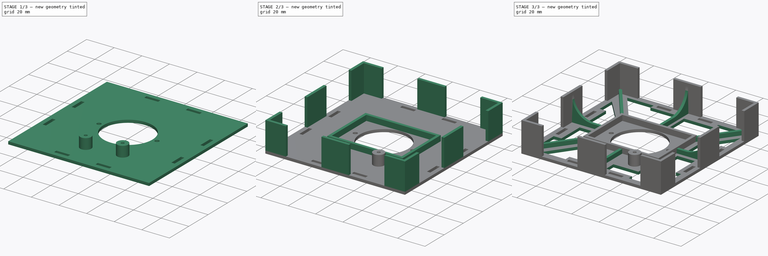
[diagram: build sequence overview — one tinted view per stage of 3, left to right]
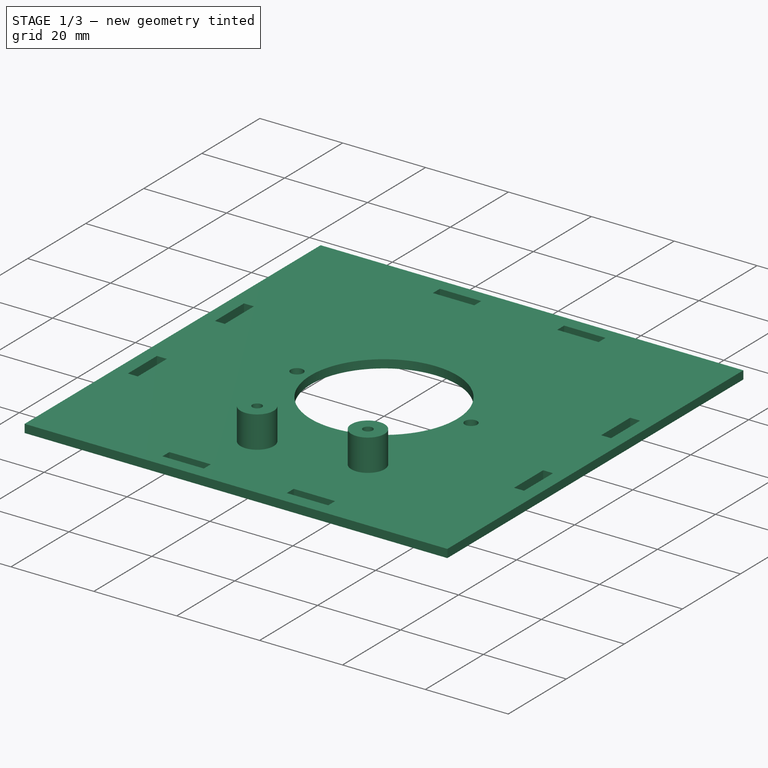
[diagram: stage 1 of 3 — iso view after this stage's code; geometry added in this stage tinted green]
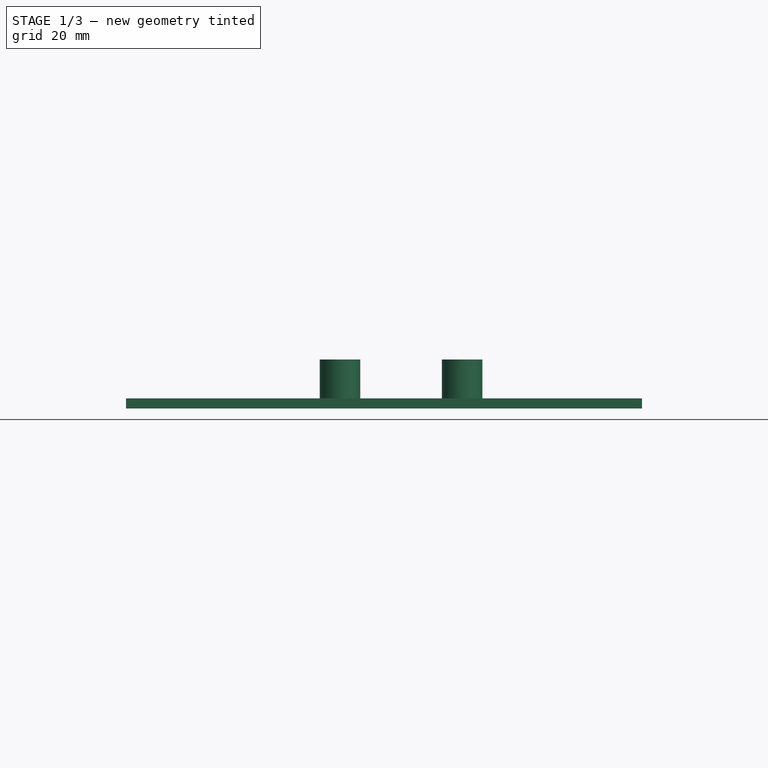
[diagram: stage 1 of 3 — front view after this stage's code; geometry added in this stage tinted green]
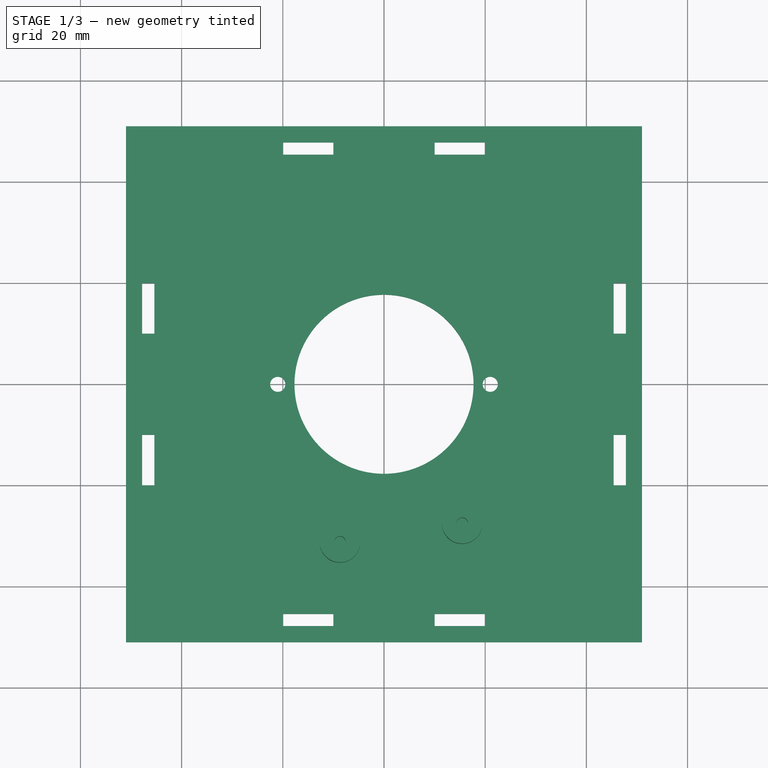
[diagram: stage 1 of 3 — top view after this stage's code; geometry added in this stage tinted green]
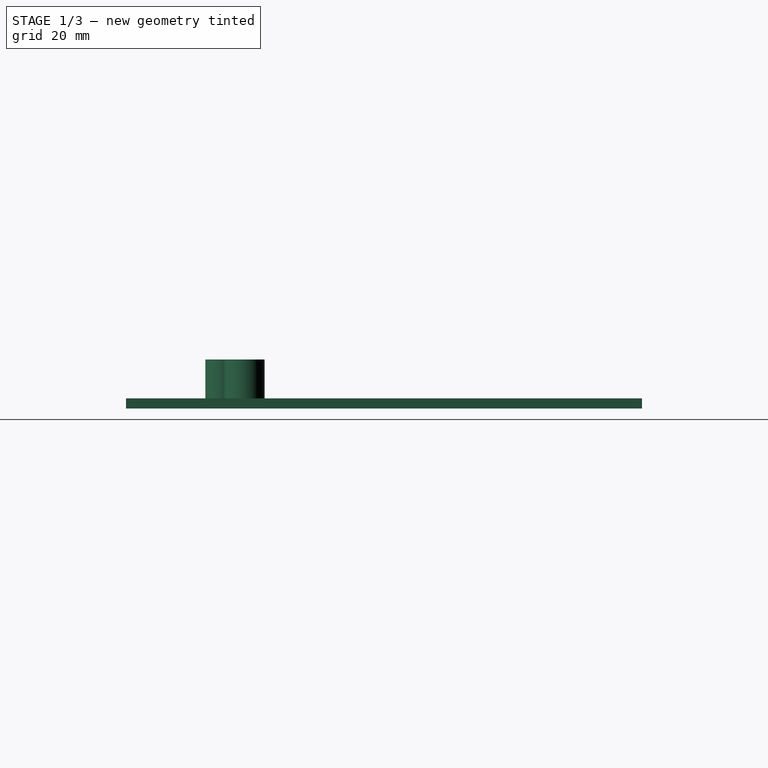
[diagram: stage 1 of 3 — right view after this stage's code; geometry added in this stage tinted green]
FCSTD DOCUMENT  (FreeCAD 0.15R4671 (Git))
Label: Rubiks Frame Bottom Top Small Steppers
License: All rights reserved
LicenseURL: http://en.wikipedia.org/wiki/All_rights_reserved
objects: Sketcher::SketchObject×7, PartDesign::Pad×5, PartDesign::Pocket×2, PartDesign::Fillet×1
note: 22 computed .brp shape members not serialized (recipe doc carries the construction recipe); baked Part::Feature solids carry a one-line shape summary decoded from their .brp

FEATURE [Sketcher::SketchObject] Sketch
  sketch-geometry (4):
    g0: LineSegment StartX=-51 StartY=51 StartZ=0 EndX=51 EndY=51 EndZ=0
    g1: LineSegment StartX=51 StartY=51 StartZ=0 EndX=51 EndY=-51 EndZ=0
    g2: LineSegment StartX=51 StartY=-51 StartZ=0 EndX=-51 EndY=-51 EndZ=0
    g3: LineSegment StartX=-51 StartY=-51 StartZ=0 EndX=-51 EndY=51 EndZ=0
  constraints (12):
    c: Coincident(g0,g1)
    c: Coincident(g1,g2)
    c: Coincident(g2,g3)
    c: Coincident(g3,g0)
    c: Horizontal(g0)
    c: Horizontal(g2)
    c: Vertical(g1)
    c: Vertical(g3)
    c: Symmetric(g0,g0,g-2)
    c: Symmetric(g0,g1,g-1)
    c: Equal(g1,g0)
    c: Distance(g0) = 102
FEATURE [PartDesign::Pad] Pad
  Length = 2
  Length2 = 100
  Sketch = -> Sketch
  Type = 0
FEATURE [Sketcher::SketchObject] Sketch001
  Placement = pos=(0,0,2) rot=(0,0,1;0rad)
  Support = -> Pad [Face6]
  sketch-geometry (39):
    g0: Circle CenterX=0 CenterY=0 CenterZ=0 NormalX=0 NormalY=0 NormalZ=1 Radius=17.7
    g1: Circle CenterX=-21 CenterY=0 CenterZ=0 NormalX=0 NormalY=0 NormalZ=1 Radius=1.5
    g2: Circle CenterX=21 CenterY=0 CenterZ=0 NormalX=0 NormalY=0 NormalZ=1 Radius=1.5
    g3: LineSegment StartX=-20 StartY=47.8 StartZ=0 EndX=-10 EndY=47.8 EndZ=0
    g4: LineSegment StartX=-10 StartY=47.8 StartZ=0 EndX=-10 EndY=45.4 EndZ=0
    g5: LineSegment StartX=-10 StartY=45.4 StartZ=0 EndX=-20 EndY=45.4 EndZ=0
    g6: LineSegment StartX=-20 StartY=45.4 StartZ=0 EndX=-20 EndY=47.8 EndZ=0
    g7: LineSegment StartX=10 StartY=47.8 StartZ=0 EndX=20 EndY=47.8 EndZ=0
    g8: LineSegment StartX=20 StartY=47.8 StartZ=0 EndX=20 EndY=45.4 EndZ=0
    g9: LineSegment StartX=20 StartY=45.4 StartZ=0 EndX=10 EndY=45.4 EndZ=0
    g10: LineSegment StartX=10 StartY=45.4 StartZ=0 EndX=10 EndY=47.8 EndZ=0
    g11: LineSegment StartX=45.4 StartY=20 StartZ=0 EndX=47.8 EndY=20 EndZ=0
    g12: LineSegment StartX=47.8 StartY=20 StartZ=0 EndX=47.8 EndY=10 EndZ=0
    g13: LineSegment StartX=47.8 StartY=10 StartZ=0 EndX=45.4 EndY=10 EndZ=0
    g14: LineSegment StartX=45.4 StartY=10 StartZ=0 EndX=45.4 EndY=20 EndZ=0
    g15: LineSegment StartX=45.4 StartY=-10 StartZ=0 EndX=47.8 EndY=-10 EndZ=0
    g16: LineSegment StartX=47.8 StartY=-10 StartZ=0 EndX=47.8 EndY=-20 EndZ=0
    g17: LineSegment StartX=47.8 StartY=-20 StartZ=0 EndX=45.4 EndY=-20 EndZ=0
    g18: LineSegment StartX=45.4 StartY=-20 StartZ=0 EndX=45.4 EndY=-10 EndZ=0
    g19: LineSegment StartX=20 StartY=-47.8 StartZ=0 EndX=10 EndY=-47.8 EndZ=0
    g20: LineSegment StartX=10 StartY=-47.8 StartZ=0 EndX=10 EndY=-45.4 EndZ=0
    g21: LineSegment StartX=10 StartY=-45.4 StartZ=0 EndX=20 EndY=-45.4 EndZ=0
    g22: LineSegment StartX=20 StartY=-45.4 StartZ=0 EndX=20 EndY=-47.8 EndZ=0
    g23: LineSegment StartX=-10 StartY=-47.8 StartZ=0 EndX=-20 EndY=-47.8 EndZ=0
    g24: LineSegment StartX=-20 StartY=-47.8 StartZ=0 EndX=-20 EndY=-45.4 EndZ=0
    g25: LineSegment StartX=-20 StartY=-45.4 StartZ=0 EndX=-10 EndY=-45.4 EndZ=0
    g26: LineSegment StartX=-10 StartY=-45.4 StartZ=0 EndX=-10 EndY=-47.8 EndZ=0
    g27: LineSegment StartX=-47.8 StartY=20 StartZ=0 EndX=-45.4 EndY=20 EndZ=0
    g28: LineSegment StartX=-45.4 StartY=20 StartZ=0 EndX=-45.4 EndY=10 EndZ=0
    g29: LineSegment StartX=-45.4 StartY=10 StartZ=0 EndX=-47.8 EndY=10 EndZ=0
    g30: LineSegment StartX=-47.8 StartY=10 StartZ=0 EndX=-47.8 EndY=20 EndZ=0
    g31: LineSegment StartX=-47.8 StartY=-10 StartZ=0 EndX=-45.4 EndY=-10 EndZ=0
    g32: LineSegment StartX=-45.4 StartY=-10 StartZ=0 EndX=-45.4 EndY=-20 EndZ=0
    g33: LineSegment StartX=-45.4 StartY=-20 StartZ=0 EndX=-47.8 EndY=-20 EndZ=0
    g34: LineSegment StartX=-47.8 StartY=-20 StartZ=0 EndX=-47.8 EndY=-10 EndZ=0
    g35: LineSegment [constr] StartX=-45.4 StartY=10 StartZ=0 EndX=-45.4 EndY=-10 EndZ=0
    g36: LineSegment [constr] StartX=-10 StartY=45.4 StartZ=0 EndX=10 EndY=45.4 EndZ=0
    g37: LineSegment [constr] StartX=-45.4 StartY=-20 StartZ=0 EndX=45.4 EndY=-20 EndZ=0
    g38: LineSegment [constr] StartX=10 StartY=45.4 StartZ=0 EndX=10 EndY=-45.4 EndZ=0
  constraints (117):
    c: Coincident(g0,g-1)
    c: Radius(g0) = 17.7
    c: Symmetric(g2,g1,g-2)
    c: Equal(g2,g1)
    c: Radius(g2) = 1.5
    c: PointOnObject(g2,g-1)
    c: DistanceX(g1,g2) = 42
    c: Coincident(g3,g4)
    c: Coincident(g4,g5)
    c: Coincident(g5,g6)
    c: Coincident(g6,g3)
    c: Horizontal(g3)
    c: Horizontal(g5)
    c: Vertical(g4)
    c: Vertical(g6)
    c: Coincident(g7,g8)
    c: Coincident(g8,g9)
    c: Coincident(g9,g10)
    c: Coincident(g10,g7)
    c: Horizontal(g7)
    c: Horizontal(g9)
    c: Vertical(g8)
    c: Vertical(g10)
    c: Coincident(g11,g12)
    c: Coincident(g12,g13)
    c: Coincident(g13,g14)
    c: Coincident(g14,g11)
    c: Horizontal(g11)
    c: Horizontal(g13)
    c: Vertical(g12)
    c: Vertical(g14)
    c: Coincident(g15,g16)
    c: Coincident(g16,g17)
    c: Coincident(g17,g18)
    c: Coincident(g18,g15)
    c: Horizontal(g15)
    c: Horizontal(g17)
    c: Vertical(g16)
    c: Vertical(g18)
    c: Coincident(g19,g20)
    c: Coincident(g20,g21)
    c: Coincident(g21,g22)
    c: Coincident(g22,g19)
    c: Horizontal(g19)
    c: Horizontal(g21)
    c: Vertical(g20)
    c: Vertical(g22)
    c: Coincident(g23,g24)
    c: Coincident(g24,g25)
    c: Coincident(g25,g26)
    c: Coincident(g26,g23)
    c: Horizontal(g23)
    c: Horizontal(g25)
    c: Vertical(g24)
    c: Vertical(g26)
    c: Coincident(g27,g28)
    c: Coincident(g28,g29)
    c: Coincident(g29,g30)
    c: Coincident(g30,g27)
    c: Horizontal(g27)
    c: Horizontal(g29)
    c: Vertical(g28)
    c: Vertical(g30)
    c: Coincident(g31,g32)
    c: Coincident(g32,g33)
    c: Coincident(g33,g34)
    c: Coincident(g34,g31)
    c: Horizontal(g31)
    c: Horizontal(g33)
    c: Vertical(g32)
    c: Vertical(g34)
    c: Equal(g30,g28)
    c: Equal(g28,g3)
    c: Equal(g3,g5)
    c: Equal(g5,g7)
    c: Equal(g7,g9)
    c: Equal(g9,g14)
    c: Equal(g14,g12)
    c: Equal(g12,g18)
    c: Equal(g18,g16)
    c: Equal(g16,g21)
    c: Equal(g21,g19)
    c: Equal(g19,g25)
    c: Equal(g25,g23)
    c: Equal(g23,g34)
    c: Equal(g34,g32)
    c: Equal(g27,g6)
    c: Equal(g6,g8)
    c: Equal(g8,g11)
    c: Equal(g11,g15)
    c: Equal(g15,g22)
    c: Equal(g22,g26)
    c: Equal(g26,g33)
    c: Symmetric(g31,g29,g-1)
    c: Symmetric(g15,g13,g-1)
    c: Symmetric(g7,g3,g-2)
    c: Symmetric(g25,g20,g-2)
    c: Symmetric(g4,g25,g-1)
    c: Symmetric(g28,g13,g-2)
    c: Coincident(g35,g28)
    c: Coincident(g35,g31)
    c: Vertical(g35)
    c: Coincident(g36,g4)
    c: Coincident(g36,g9)
    c: Horizontal(g36)
    c: Equal(g35,g36)
    c: Distance(g27) = 2.4
    c: Distance(g35) = 20
    c: DistanceX(g-1,g33) = -47.8
    c: Distance(g30) = 10
    c: Coincident(g37,g32)
    c: Coincident(g37,g17)
    c: Horizontal(g37)
    c: Coincident(g38,g20)
    c: Vertical(g38)
    c: Equal(g38,g37)
    c: Coincident(g38,g9)
FEATURE [PartDesign::Pocket] Pocket
  Length = 5
  Sketch = -> Sketch001
  Type = 1
FEATURE [Sketcher::SketchObject] Sketch002
  Placement = pos=(0,0,2) rot=(0,0,1;0rad)
  Support = -> Pocket [Face5]
  sketch-geometry (8):
    g0: LineSegment [constr] StartX=-24.3 StartY=-21 StartZ=0 EndX=24.3 EndY=-21 EndZ=0
    g1: LineSegment [constr] StartX=24.3 StartY=-21 StartZ=0 EndX=24.3 EndY=-41.4 EndZ=0
    g2: LineSegment [constr] StartX=24.3 StartY=-41.4 StartZ=0 EndX=-24.3 EndY=-41.4 EndZ=0
    g3: LineSegment [constr] StartX=-24.3 StartY=-41.4 StartZ=0 EndX=-24.3 EndY=-21 EndZ=0
    g4: Circle CenterX=15.45 CenterY=-27.6 CenterZ=0 NormalX=0 NormalY=0 NormalZ=1 Radius=4
    g5: Circle CenterX=-8.7 CenterY=-31.3 CenterZ=0 NormalX=0 NormalY=0 NormalZ=1 Radius=4
    g6: Circle CenterX=15.45 CenterY=-27.6 CenterZ=0 NormalX=0 NormalY=0 NormalZ=1 Radius=1.15
    g7: Circle CenterX=-8.7 CenterY=-31.3 CenterZ=0 NormalX=0 NormalY=0 NormalZ=1 Radius=1.15
  constraints (22):
    c: Coincident(g0,g1)
    c: Coincident(g1,g2)
    c: Coincident(g2,g3)
    c: Coincident(g3,g0)
    c: Horizontal(g0)
    c: Horizontal(g2)
    c: Vertical(g1)
    c: Vertical(g3)
    c: Distance(g0) = 48.6
    c: Distance(g1) = 20.4
    c: Symmetric(g0,g0,g-2)
    c: DistanceY(g-1,g0) = -21
    c: Radius(g4) = 4
    c: Radius(g5) = 4
    c: DistanceX(g0,g4) = -8.85
    c: DistanceY(g4,g0) = 6.6
    c: DistanceY(g5,g0) = 10.3
    c: DistanceX(g0,g5) = 15.6
    c: Coincident(g6,g4)
    c: Coincident(g7,g5)
    c: Equal(g7,g6)
    c: Radius(g7) = 1.15
FEATURE [PartDesign::Pad] Pad001
  Length = 7.7
  Length2 = 100
  Sketch = -> Sketch002
  Type = 0
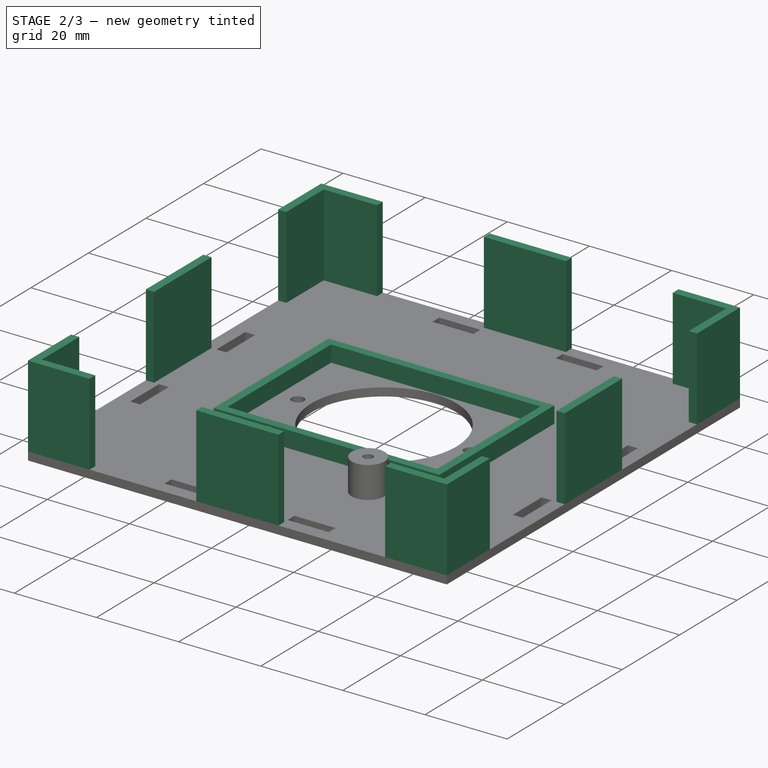
[diagram: stage 2 of 3 — iso view after this stage's code; geometry added in this stage tinted green]
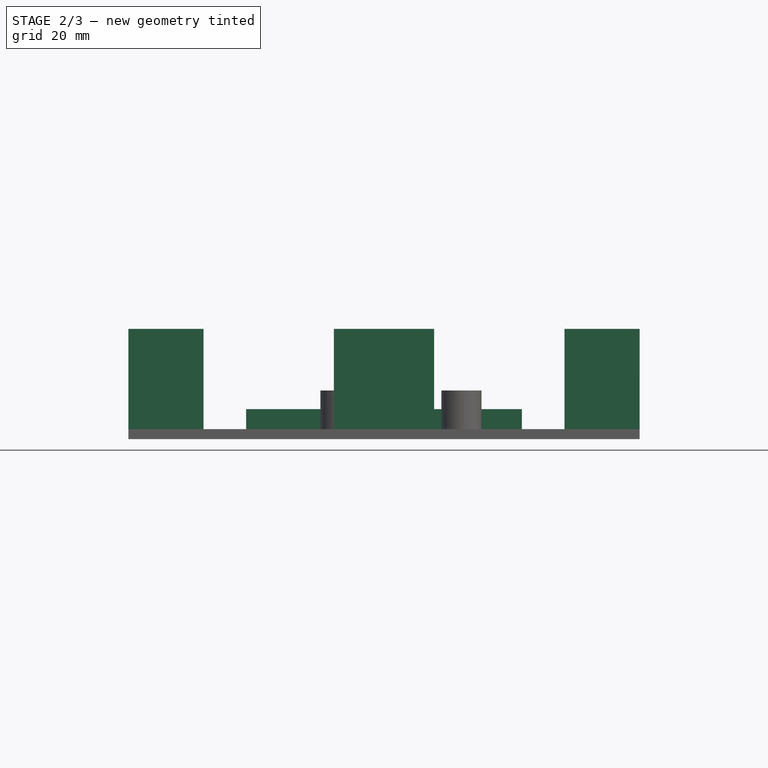
[diagram: stage 2 of 3 — front view after this stage's code; geometry added in this stage tinted green]
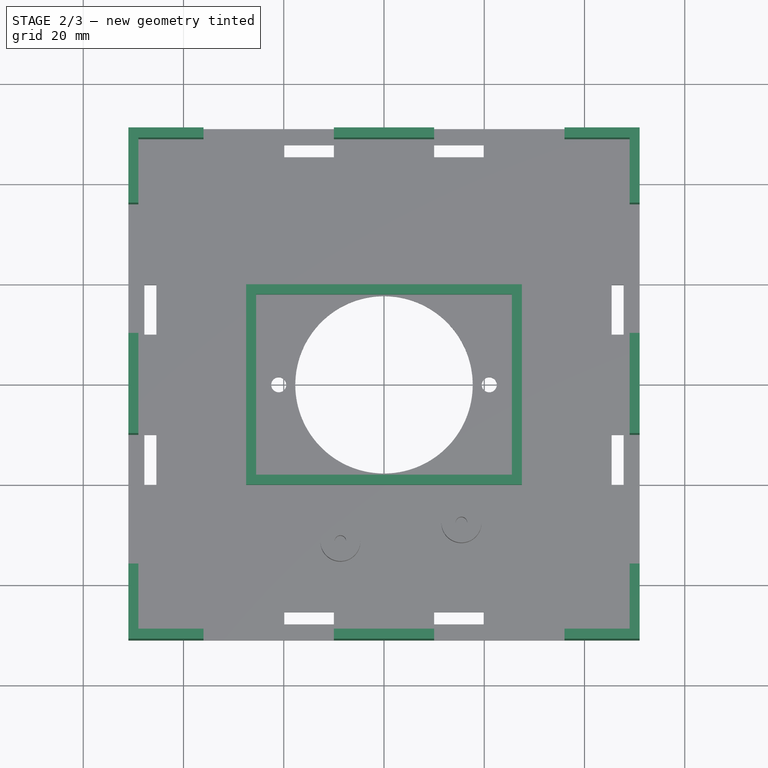
[diagram: stage 2 of 3 — top view after this stage's code; geometry added in this stage tinted green]
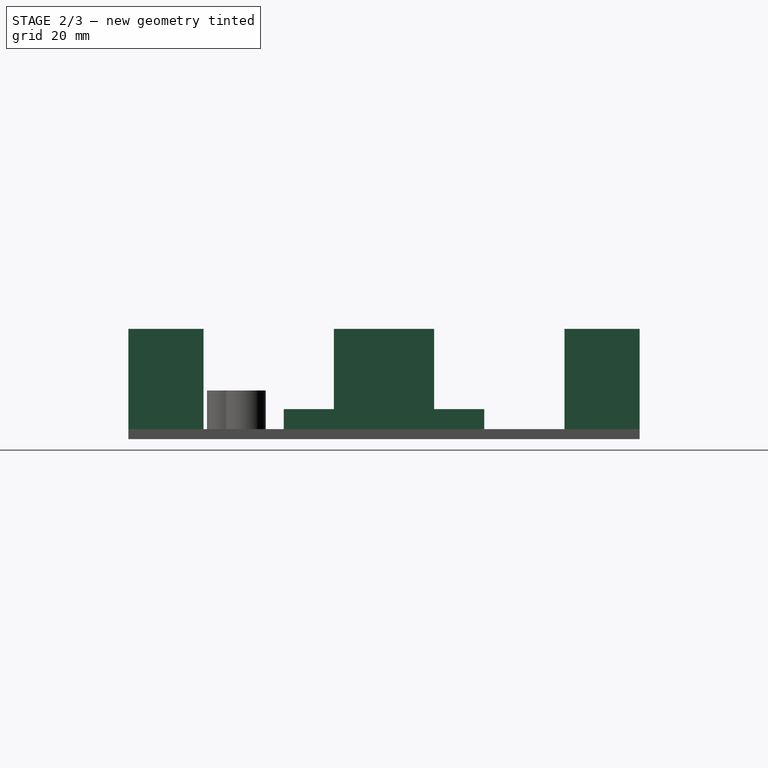
[diagram: stage 2 of 3 — right view after this stage's code; geometry added in this stage tinted green]
FEATURE [Sketcher::SketchObject] Sketch003
  ExternalGeometry = -> [Pad001]
  Placement = pos=(0,0,2) rot=(0,0,1;0rad)
  Support = -> Pad001 [Face5]
  sketch-geometry (40):
    g0: LineSegment StartX=-51 StartY=36 StartZ=0 EndX=-49 EndY=36 EndZ=0
    g1: LineSegment StartX=-49 StartY=36 StartZ=0 EndX=-49 EndY=49 EndZ=0
    g2: LineSegment StartX=-49 StartY=49 StartZ=0 EndX=-36 EndY=49 EndZ=0
    g3: LineSegment StartX=-36 StartY=49 StartZ=0 EndX=-36 EndY=51 EndZ=0
    g4: LineSegment StartX=-36 StartY=51 StartZ=0 EndX=-51 EndY=51 EndZ=0
    g5: LineSegment StartX=-51 StartY=51 StartZ=0 EndX=-51 EndY=36 EndZ=0
    g6: LineSegment StartX=36 StartY=51 StartZ=0 EndX=36 EndY=49 EndZ=0
    g7: LineSegment StartX=36 StartY=49 StartZ=0 EndX=49 EndY=49 EndZ=0
    g8: LineSegment StartX=49 StartY=49 StartZ=0 EndX=49 EndY=36 EndZ=0
    g9: LineSegment StartX=49 StartY=36 StartZ=0 EndX=51 EndY=36 EndZ=0
    g10: LineSegment StartX=51 StartY=36 StartZ=0 EndX=51 EndY=51 EndZ=0
    g11: LineSegment StartX=51 StartY=51 StartZ=0 EndX=36 EndY=51 EndZ=0
    g12: LineSegment StartX=51 StartY=-36 StartZ=0 EndX=51 EndY=-51 EndZ=0
    g13: LineSegment StartX=51 StartY=-51 StartZ=0 EndX=36 EndY=-51 EndZ=0
    g14: LineSegment StartX=36 StartY=-51 StartZ=0 EndX=36 EndY=-49 EndZ=0
    g15: LineSegment StartX=36 StartY=-49 StartZ=0 EndX=49 EndY=-49 EndZ=0
    g16: LineSegment StartX=49 StartY=-49 StartZ=0 EndX=49 EndY=-36 EndZ=0
    g17: LineSegment StartX=49 StartY=-36 StartZ=0 EndX=51 EndY=-36 EndZ=0
    g18: LineSegment StartX=-51 StartY=-51 StartZ=0 EndX=-36 EndY=-51 EndZ=0
    g19: LineSegment StartX=-36 StartY=-51 StartZ=0 EndX=-36 EndY=-49 EndZ=0
    g20: LineSegment StartX=-36 StartY=-49 StartZ=0 EndX=-49 EndY=-49 EndZ=0
    g21: LineSegment StartX=-49 StartY=-49 StartZ=0 EndX=-49 EndY=-36 EndZ=0
    g22: LineSegment StartX=-49 StartY=-36 StartZ=0 EndX=-51 EndY=-36 EndZ=0
    g23: LineSegment StartX=-51 StartY=-36 StartZ=0 EndX=-51 EndY=-51 EndZ=0
    g24: LineSegment StartX=-10 StartY=51 StartZ=0 EndX=10 EndY=51 EndZ=0
    g25: LineSegment StartX=10 StartY=51 StartZ=0 EndX=10 EndY=49 EndZ=0
    g26: LineSegment StartX=10 StartY=49 StartZ=0 EndX=-10 EndY=49 EndZ=0
    g27: LineSegment StartX=-10 StartY=49 StartZ=0 EndX=-10 EndY=51 EndZ=0
    g28: LineSegment StartX=49 StartY=10 StartZ=0 EndX=51 EndY=10 EndZ=0
    g29: LineSegment StartX=51 StartY=10 StartZ=0 EndX=51 EndY=-10 EndZ=0
    g30: LineSegment StartX=51 StartY=-10 StartZ=0 EndX=49 EndY=-10 EndZ=0
    g31: LineSegment StartX=49 StartY=-10 StartZ=0 EndX=49 EndY=10 EndZ=0
    g32: LineSegment StartX=-10 StartY=-49 StartZ=0 EndX=10 EndY=-49 EndZ=0
    g33: LineSegment StartX=10 StartY=-49 StartZ=0 EndX=10 EndY=-51 EndZ=0
    g34: LineSegment StartX=10 StartY=-51 StartZ=0 EndX=-10 EndY=-51 EndZ=0
    g35: LineSegment StartX=-10 StartY=-51 StartZ=0 EndX=-10 EndY=-49 EndZ=0
    g36: LineSegment StartX=-49 StartY=10 StartZ=0 EndX=-51 EndY=10 EndZ=0
    g37: LineSegment StartX=-51 StartY=10 StartZ=0 EndX=-51 EndY=-10 EndZ=0
    g38: LineSegment StartX=-51 StartY=-10 StartZ=0 EndX=-49 EndY=-10 EndZ=0
    g39: LineSegment StartX=-49 StartY=-10 StartZ=0 EndX=-49 EndY=10 EndZ=0
  constraints (118):
    c: PointOnObject(g0,g-3)
    c: Coincident(g0,g1)
    c: Vertical(g1)
    c: Coincident(g1,g2)
    c: Horizontal(g2)
    c: Coincident(g2,g3)
    c: PointOnObject(g3,g-5)
    c: Vertical(g3)
    c: Coincident(g3,g4)
    c: Horizontal(g4)
    c: Coincident(g4,g5)
    c: Coincident(g5,g0)
    c: Vertical(g5)
    c: Equal(g3,g0)
    c: Horizontal(g0)
    c: Equal(g1,g2)
    c: Distance(g0) = 2
    c: Distance(g3,g4) = 15
    c: PointOnObject(g6,g-5)
    c: Coincident(g6,g7)
    c: Horizontal(g7)
    c: Coincident(g7,g8)
    c: Coincident(g8,g9)
    c: PointOnObject(g9,g-6)
    c: Horizontal(g9)
    c: Coincident(g9,g10)
    c: Vertical(g10)
    c: Coincident(g10,g11)
    c: Coincident(g11,g6)
    c: Horizontal(g11)
    c: PointOnObject(g12,g-6)
    c: Coincident(g12,g-6)
    c: Coincident(g12,g13)
    c: PointOnObject(g13,g-4)
    c: Coincident(g13,g14)
    c: Vertical(g14)
    c: Coincident(g14,g15)
    c: Horizontal(g15)
    c: Coincident(g15,g16)
    c: Coincident(g16,g17)
    c: Coincident(g17,g12)
    c: Horizontal(g17)
    c: Coincident(g-4,g18)
    c: PointOnObject(g18,g-4)
    c: Coincident(g18,g19)
    c: Coincident(g19,g20)
    c: Horizontal(g20)
    c: Coincident(g20,g21)
    c: Vertical(g21)
    c: Coincident(g21,g22)
    c: PointOnObject(g22,g-3)
    c: Coincident(g22,g23)
    c: Coincident(g23,g18)
    c: Horizontal(g22)
    c: Vertical(g19)
    c: Vertical(g16)
    c: Vertical(g8)
    c: Equal(g22,g19)
    c: Equal(g19,g14)
    c: Equal(g14,g17)
    c: Equal(g17,g9)
    c: Equal(g9,g6)
    c: Equal(g6,g3)
    c: Vertical(g6)
    c: Equal(g2,g7)
    c: Equal(g7,g8)
    c: Equal(g8,g16)
    c: Equal(g16,g15)
    c: Equal(g15,g20)
    c: Equal(g20,g21)
    c: Coincident(g24,g25)
    c: Coincident(g25,g26)
    c: Coincident(g26,g27)
    c: Coincident(g27,g24)
    c: Horizontal(g24)
    c: Horizontal(g26)
    c: Vertical(g25)
    c: Vertical(g27)
    c: Coincident(g28,g29)
    c: Coincident(g29,g30)
    c: Coincident(g30,g31)
    c: Coincident(g31,g28)
    c: Horizontal(g28)
    c: Horizontal(g30)
    c: Vertical(g29)
    c: Vertical(g31)
    c: PointOnObject(g29,g-6)
    c: Coincident(g32,g33)
    c: Coincident(g33,g34)
    c: Coincident(g34,g35)
    c: Coincident(g35,g32)
    c: Horizontal(g32)
    c: Horizontal(g34)
    c: Vertical(g33)
    c: Vertical(g35)
    c: PointOnObject(g33,g-4)
    c: Coincident(g36,g37)
    c: Coincident(g37,g38)
    c: Coincident(g38,g39)
    c: Coincident(g39,g36)
    c: Horizontal(g36)
    c: Horizontal(g38)
    c: Vertical(g37)
    c: Vertical(g39)
    c: PointOnObject(g37,g-3)
    c: Equal(g36,g27)
    c: Equal(g27,g28)
    c: Equal(g28,g33)
    c: Equal(g33,g3)
    c: Equal(g39,g26)
    c: Equal(g26,g31)
    c: Equal(g31,g32)
    c: PointOnObject(g24,g-5)
    c: Symmetric(g24,g24,g-2)
    c: Symmetric(g34,g33,g-2)
    c: Symmetric(g28,g29,g-1)
    c: Symmetric(g37,g36,g-1)
    c: Distance(g39) = 20
FEATURE [PartDesign::Pad] Pad002
  Length = 20
  Length2 = 100
  Sketch = -> Sketch003
  Type = 0
FEATURE [Sketcher::SketchObject] Sketch004
  Placement = pos=(0,0,2) rot=(0,0,1;0rad)
  Support = -> Pad002 [Face42]
  sketch-geometry (8):
    g0: LineSegment StartX=-25.5 StartY=18 StartZ=0 EndX=25.5 EndY=18 EndZ=0
    g1: LineSegment StartX=25.5 StartY=18 StartZ=0 EndX=25.5 EndY=-18 EndZ=0
    g2: LineSegment StartX=25.5 StartY=-18 StartZ=0 EndX=-25.5 EndY=-18 EndZ=0
    g3: LineSegment StartX=-25.5 StartY=-18 StartZ=0 EndX=-25.5 EndY=18 EndZ=0
    g4: LineSegment StartX=-27.5 StartY=20 StartZ=0 EndX=27.5 EndY=20 EndZ=0
    g5: LineSegment StartX=27.5 StartY=20 StartZ=0 EndX=27.5 EndY=-20 EndZ=0
    g6: LineSegment StartX=27.5 StartY=-20 StartZ=0 EndX=-27.5 EndY=-20 EndZ=0
    g7: LineSegment StartX=-27.5 StartY=-20 StartZ=0 EndX=-27.5 EndY=20 EndZ=0
  constraints (24):
    c: Coincident(g0,g1)
    c: Coincident(g1,g2)
    c: Coincident(g2,g3)
    c: Coincident(g3,g0)
    c: Horizontal(g0)
    c: Horizontal(g2)
    c: Vertical(g1)
    c: Vertical(g3)
    c: Distance(g0) = 51
    c: Symmetric(g0,g0,g-2)
    c: Symmetric(g0,g1,g-1)
    c: Distance(g1) = 36
    c: Coincident(g4,g5)
    c: Coincident(g5,g6)
    c: Coincident(g6,g7)
    c: Coincident(g7,g4)
    c: Horizontal(g4)
    c: Horizontal(g6)
    c: Vertical(g5)
    c: Vertical(g7)
    c: DistanceY(g6,g2) = 2
    c: DistanceX(g2,g6) = -2
    c: DistanceY(g0,g4) = 2
    c: DistanceX(g0,g4) = 2
FEATURE [PartDesign::Pad] Pad003
  Length = 4
  Length2 = 100
  Sketch = -> Sketch004
  Type = 0
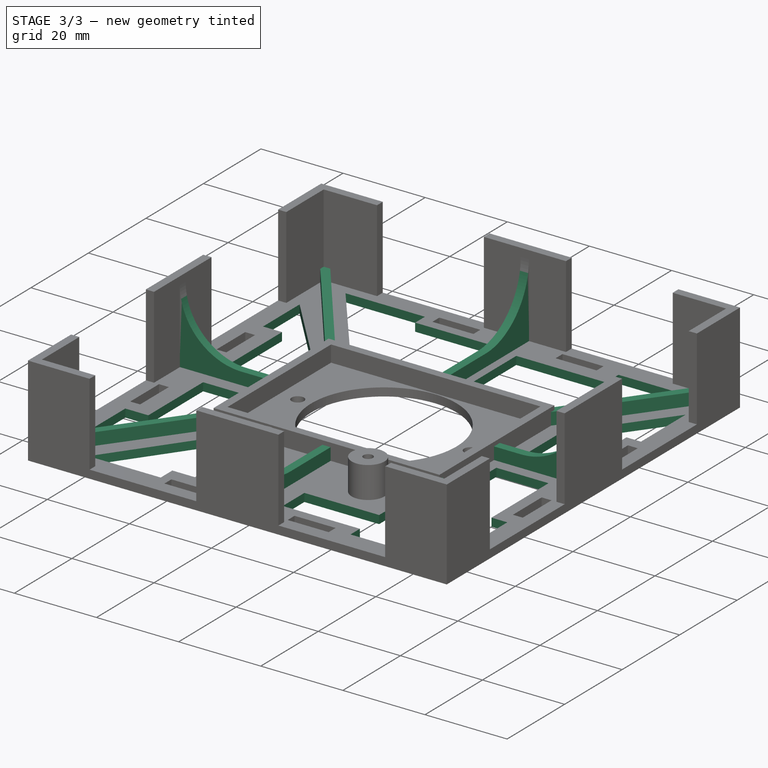
[diagram: stage 3 of 3 — iso view after this stage's code; geometry added in this stage tinted green]
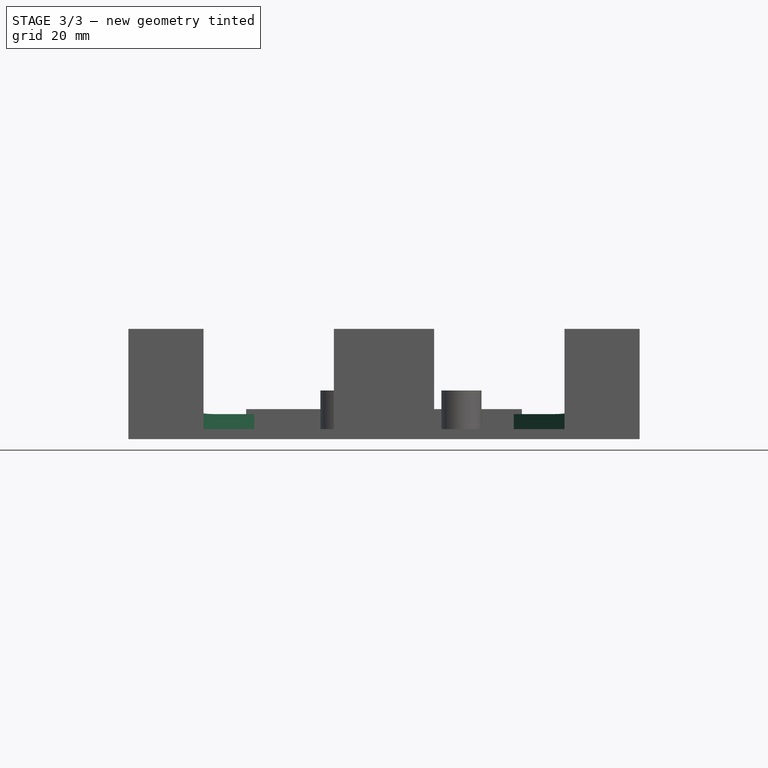
[diagram: stage 3 of 3 — front view after this stage's code; geometry added in this stage tinted green]
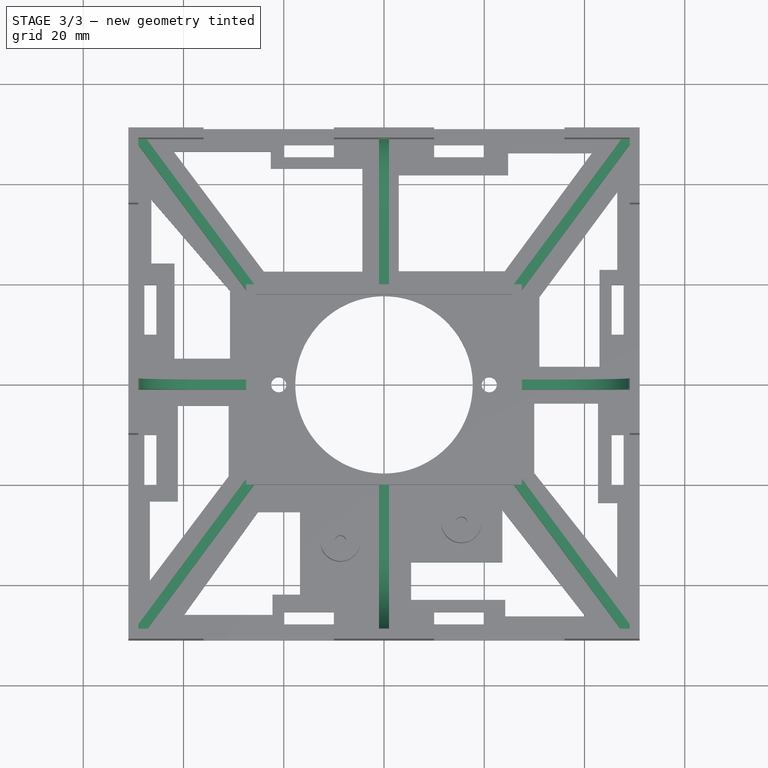
[diagram: stage 3 of 3 — top view after this stage's code; geometry added in this stage tinted green]
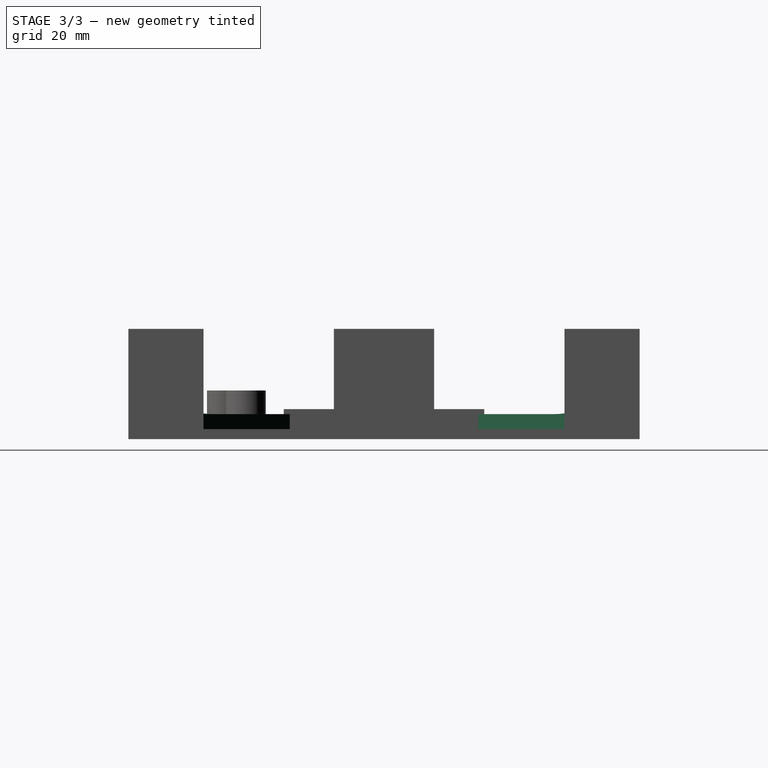
[diagram: stage 3 of 3 — right view after this stage's code; geometry added in this stage tinted green]
FEATURE [Sketcher::SketchObject] Sketch005
  ExternalGeometry = -> [Pad003]
  Placement = pos=(0,0,2) rot=(0,0,1;0rad)
  Support = -> Pad003 [Face42]
  sketch-geometry (48):
    g0: LineSegment StartX=-1 StartY=49 StartZ=0 EndX=1 EndY=49 EndZ=0
    g1: LineSegment StartX=1 StartY=49 StartZ=0 EndX=1 EndY=20 EndZ=0
    g2: LineSegment StartX=1 StartY=20 StartZ=0 EndX=-1 EndY=20 EndZ=0
    g3: LineSegment StartX=-1 StartY=20 StartZ=0 EndX=-1 EndY=49 EndZ=0
    g4: LineSegment StartX=27.5 StartY=1 StartZ=0 EndX=49 EndY=1 EndZ=0
    g5: LineSegment StartX=49 StartY=1 StartZ=0 EndX=49 EndY=-1 EndZ=0
    g6: LineSegment StartX=49 StartY=-1 StartZ=0 EndX=27.5 EndY=-1 EndZ=0
    g7: LineSegment StartX=27.5 StartY=-1 StartZ=0 EndX=27.5 EndY=1 EndZ=0
    g8: LineSegment StartX=1 StartY=-20 StartZ=0 EndX=-1 EndY=-20 EndZ=0
    g9: LineSegment StartX=-1 StartY=-20 StartZ=0 EndX=-1 EndY=-49 EndZ=0
    g10: LineSegment StartX=-1 StartY=-49 StartZ=0 EndX=1 EndY=-49 EndZ=0
    g11: LineSegment StartX=1 StartY=-49 StartZ=0 EndX=1 EndY=-20 EndZ=0
    g12: LineSegment StartX=-27.5 StartY=1 StartZ=0 EndX=-49 EndY=1 EndZ=0
    g13: LineSegment StartX=-49 StartY=1 StartZ=0 EndX=-49 EndY=-1 EndZ=0
    g14: LineSegment StartX=-49 StartY=-1 StartZ=0 EndX=-27.5 EndY=-1 EndZ=0
    g15: LineSegment StartX=-27.5 StartY=-1 StartZ=0 EndX=-27.5 EndY=1 EndZ=0
    g16: LineSegment StartX=-27.5 StartY=18.8089 StartZ=0 EndX=-49 EndY=47.8089 EndZ=0
    g17: LineSegment StartX=-49 StartY=47.8089 StartZ=0 EndX=-49 EndY=49 EndZ=0
    g18: LineSegment StartX=-49 StartY=49 StartZ=0 EndX=-47.3934 EndY=49 EndZ=0
    g19: LineSegment StartX=-47.3934 StartY=49 StartZ=0 EndX=-25.8934 EndY=20 EndZ=0
    g20: LineSegment StartX=-25.8934 StartY=20 StartZ=0 EndX=-27.5 EndY=20 EndZ=0
    g21: LineSegment StartX=-27.5 StartY=20 StartZ=0 EndX=-27.5 EndY=18.8089 EndZ=0
    g22: LineSegment [constr] StartX=-49 StartY=47.8089 StartZ=0 EndX=-47.3934 EndY=49 EndZ=0
    g23: LineSegment [constr] StartX=-27.5 StartY=18.8089 StartZ=0 EndX=-25.8934 EndY=20 EndZ=0
    g24: LineSegment StartX=25.8934 StartY=20 StartZ=0 EndX=47.3934 EndY=49 EndZ=0
    g25: LineSegment StartX=47.3934 StartY=49 StartZ=0 EndX=49 EndY=49 EndZ=0
    g26: LineSegment StartX=49 StartY=49 StartZ=0 EndX=49 EndY=47.8089 EndZ=0
    g27: LineSegment StartX=49 StartY=47.8089 StartZ=0 EndX=27.5 EndY=18.8089 EndZ=0
    g28: LineSegment StartX=27.5 StartY=18.8089 StartZ=0 EndX=27.5 EndY=20 EndZ=0
    g29: LineSegment StartX=27.5 StartY=20 StartZ=0 EndX=25.8934 EndY=20 EndZ=0
    g30: LineSegment StartX=47.3934 StartY=-49 StartZ=0 EndX=25.8934 EndY=-20 EndZ=0
    g31: LineSegment StartX=25.8934 StartY=-20 StartZ=0 EndX=27.5 EndY=-20 EndZ=0
    g32: LineSegment StartX=27.5 StartY=-20 StartZ=0 EndX=27.5 EndY=-18.8089 EndZ=0
    g33: LineSegment StartX=27.5 StartY=-18.8089 StartZ=0 EndX=49 EndY=-47.8089 EndZ=0
    g34: LineSegment StartX=49 StartY=-47.8089 StartZ=0 EndX=49 EndY=-49 EndZ=0
    g35: LineSegment StartX=49 StartY=-49 StartZ=0 EndX=47.3934 EndY=-49 EndZ=0
    g36: LineSegment StartX=-47.3934 StartY=-49 StartZ=0 EndX=-49 EndY=-49 EndZ=0
    g37: LineSegment StartX=-49 StartY=-49 StartZ=0 EndX=-49 EndY=-47.8089 EndZ=0
    g38: LineSegment StartX=-49 StartY=-47.8089 StartZ=0 EndX=-27.5 EndY=-18.8089 EndZ=0
    g39: LineSegment StartX=-27.5 StartY=-18.8089 StartZ=0 EndX=-27.5 EndY=-20 EndZ=0
    g40: LineSegment StartX=-27.5 StartY=-20 StartZ=0 EndX=-25.8934 EndY=-20 EndZ=0
    g41: LineSegment StartX=-25.8934 StartY=-20 StartZ=0 EndX=-47.3934 EndY=-49 EndZ=0
    g42: LineSegment [constr] StartX=-47.3934 StartY=-49 StartZ=0 EndX=-49 EndY=-47.8089 EndZ=0
    g43: LineSegment [constr] StartX=-27.5 StartY=-18.8089 StartZ=0 EndX=-25.8934 EndY=-20 EndZ=0
    g44: LineSegment [constr] StartX=25.8934 StartY=-20 StartZ=0 EndX=27.5 EndY=-18.8089 EndZ=0
    g45: LineSegment [constr] StartX=49 StartY=-47.8089 StartZ=0 EndX=47.3934 EndY=-49 EndZ=0
    g46: LineSegment [constr] StartX=27.5 StartY=18.8089 StartZ=0 EndX=25.8934 EndY=20 EndZ=0
    g47: LineSegment [constr] StartX=47.3934 StartY=49 StartZ=0 EndX=49 EndY=47.8089 EndZ=0
  constraints (129):
    c: Coincident(g0,g1)
    c: Coincident(g1,g2)
    c: Coincident(g2,g3)
    c: Coincident(g3,g0)
    c: Horizontal(g0)
    c: Horizontal(g2)
    c: Vertical(g1)
    c: Vertical(g3)
    c: PointOnObject(g0,g-11)
    c: PointOnObject(g1,g-16)
    c: Coincident(g4,g5)
    c: Coincident(g5,g6)
    c: Coincident(g6,g7)
    c: Coincident(g7,g4)
    c: Horizontal(g4)
    c: Horizontal(g6)
    c: Vertical(g5)
    c: Vertical(g7)
    c: PointOnObject(g4,g-17)
    c: PointOnObject(g5,g-8)
    c: Coincident(g8,g9)
    c: Coincident(g9,g10)
    c: Coincident(g10,g11)
    c: Coincident(g11,g8)
    c: Horizontal(g8)
    c: Horizontal(g10)
    c: Vertical(g9)
    c: Vertical(g11)
    c: PointOnObject(g8,g-18)
    c: PointOnObject(g9,g-5)
    c: Coincident(g12,g13)
    c: Coincident(g13,g14)
    c: Coincident(g14,g15)
    c: Coincident(g15,g12)
    c: Horizontal(g12)
    c: Horizontal(g14)
    c: Vertical(g13)
    c: Vertical(g15)
    c: PointOnObject(g13,g-14)
    c: Equal(g2,g7)
    c: Equal(g7,g8)
    c: Equal(g8,g15)
    c: Symmetric(g14,g12,g-1)
    c: Symmetric(g2,g1,g-2)
    c: PointOnObject(g12,g-15)
    c: DistanceY(g13,g12) = 2
    c: PointOnObject(g16,g-15)
    c: PointOnObject(g16,g-13)
    c: Coincident(g16,g17)
    c: Coincident(g17,g-13)
    c: Coincident(g17,g18)
    c: PointOnObject(g18,g-12)
    c: Coincident(g18,g19)
    c: PointOnObject(g19,g-16)
    c: Coincident(g19,g20)
    c: Horizontal(g20)
    c: Coincident(g20,g21)
    c: Coincident(g21,g16)
    c: Coincident(g20,g-16)
    c: Parallel(g19,g16)
    c: Coincident(g22,g16)
    c: Coincident(g22,g18)
    c: Perpendicular(g22,g16)
    c: Distance(g22) = 2
    c: Coincident(g23,g16)
    c: Coincident(g23,g19)
    c: Perpendicular(g19,g23)
    c: PointOnObject(g24,g-16)
    c: PointOnObject(g24,g-10)
    c: Coincident(g24,g25)
    c: Coincident(g25,g-10)
    c: Coincident(g25,g26)
    c: PointOnObject(g26,g-9)
    c: Coincident(g26,g27)
    c: PointOnObject(g27,g-17)
    c: Coincident(g27,g28)
    c: Coincident(g28,g-17)
    c: Coincident(g28,g29)
    c: Coincident(g29,g24)
    c: PointOnObject(g30,g-6)
    c: PointOnObject(g30,g-18)
    c: Coincident(g30,g31)
    c: Coincident(g31,g-18)
    c: Coincident(g31,g32)
    c: PointOnObject(g32,g-17)
    c: Coincident(g32,g33)
    c: PointOnObject(g33,g-7)
    c: Coincident(g33,g34)
    c: Coincident(g34,g-7)
    c: Coincident(g34,g35)
    c: Coincident(g35,g30)
    c: PointOnObject(g36,g-4)
    c: Coincident(g36,g-4)
    c: Coincident(g36,g37)
    c: PointOnObject(g37,g-3)
    c: Coincident(g37,g38)
    c: PointOnObject(g38,g-15)
    c: Coincident(g38,g39)
    c: Coincident(g39,g-18)
    c: Coincident(g39,g40)
    c: PointOnObject(g40,g-18)
    c: Coincident(g40,g41)
    c: Coincident(g41,g36)
    c: Coincident(g42,g36)
    c: Coincident(g42,g37)
    c: Coincident(g43,g38)
    c: Coincident(g43,g40)
    c: Coincident(g44,g30)
    c: Coincident(g44,g32)
    c: Coincident(g45,g33)
    c: Coincident(g45,g30)
    c: Coincident(g46,g27)
    c: Coincident(g46,g24)
    c: Coincident(g47,g24)
    c: Coincident(g47,g26)
    c: Equal(g46,g47)
    c: Equal(g47,g44)
    c: Equal(g44,g45)
    c: Equal(g45,g43)
    c: Equal(g43,g42)
    c: Equal(g42,g23)
    c: Perpendicular(g24,g46)
    c: Perpendicular(g27,g47)
    c: Perpendicular(g33,g45)
    c: Perpendicular(g44,g30)
    c: Perpendicular(g43,g38)
    c: Perpendicular(g41,g42)
    c: Symmetric(g8,g8,g-2)
    c: Symmetric(g6,g4,g-1)
FEATURE [PartDesign::Pad] Pad004
  Length = 3
  Length2 = 100
  Sketch = -> Sketch005
  Type = 0
FEATURE [Sketcher::SketchObject] Sketch006
  Placement = pos=(0,0,2) rot=(0,0,1;0rad)
  Support = -> Pad004 [Face50]
  sketch-geometry (49):
    g0: LineSegment StartX=-41.9253 StartY=46.4879 StartZ=0 EndX=-23.9687 EndY=22.5694 EndZ=0
    g1: LineSegment StartX=-23.9687 StartY=22.5694 StartZ=0 EndX=-4.32047 EndY=22.5694 EndZ=0
    g2: LineSegment StartX=-4.32047 StartY=22.5694 StartZ=0 EndX=-4.32047 EndY=43.1058 EndZ=0
    g3: LineSegment StartX=-4.32047 StartY=43.1058 StartZ=0 EndX=-22.588 EndY=43.1058 EndZ=0
    g4: LineSegment StartX=-22.588 StartY=43.1058 StartZ=0 EndX=-22.588 EndY=46.4879 EndZ=0
    g5: LineSegment StartX=-22.588 StartY=46.4879 StartZ=0 EndX=-41.9253 EndY=46.4879 EndZ=0
    g6: LineSegment StartX=2.93549 StartY=41.8118 StartZ=0 EndX=2.93549 EndY=22.6657 EndZ=0
    g7: LineSegment StartX=2.93549 StartY=22.6657 StartZ=0 EndX=24.0925 EndY=22.6657 EndZ=0
    g8: LineSegment StartX=24.0925 StartY=22.6657 StartZ=0 EndX=41.4691 EndY=46.2019 EndZ=0
    g9: LineSegment StartX=41.4691 StartY=46.2019 StartZ=0 EndX=24.7695 EndY=46.2019 EndZ=0
    g10: LineSegment StartX=24.7695 StartY=46.2019 StartZ=0 EndX=24.7695 EndY=41.8118 EndZ=0
    g11: LineSegment StartX=24.7695 StartY=41.8118 StartZ=0 EndX=2.93549 EndY=41.8118 EndZ=0
    g12: LineSegment StartX=46.5276 StartY=38.4377 StartZ=0 EndX=46.5276 EndY=22.9237 EndZ=0
    g13: LineSegment StartX=46.5276 StartY=22.9237 StartZ=0 EndX=43.0011 EndY=22.9237 EndZ=0
    g14: LineSegment StartX=43.0011 StartY=22.9237 StartZ=0 EndX=43.0011 EndY=3.59532 EndZ=0
    g15: LineSegment StartX=43.0011 StartY=3.59532 StartZ=0 EndX=30.9992 EndY=3.59532 EndZ=0
    g16: LineSegment StartX=30.9992 StartY=3.59532 StartZ=0 EndX=30.9992 EndY=17.4979 EndZ=0
    g17: LineSegment StartX=30.9992 StartY=17.4979 StartZ=0 EndX=46.5276 EndY=38.4377 EndZ=0
    g18: LineSegment StartX=46.5339 StartY=-38.4944 StartZ=0 EndX=46.5339 EndY=-23.5655 EndZ=0
    g19: LineSegment StartX=46.5339 StartY=-23.5655 StartZ=0 EndX=42.6813 EndY=-23.5655 EndZ=0
    g20: LineSegment StartX=42.6813 StartY=-23.5655 StartZ=0 EndX=42.6813 EndY=-3.72463 EndZ=0
    g21: LineSegment StartX=42.6813 StartY=-3.72463 StartZ=0 EndX=29.9677 EndY=-3.72463 EndZ=0
    g22: LineSegment StartX=29.9677 StartY=-3.72463 StartZ=0 EndX=29.9677 EndY=-17.594 EndZ=0
    g23: LineSegment StartX=29.9677 StartY=-17.594 StartZ=0 EndX=46.5339 EndY=-38.4944 EndZ=0
    g24: LineSegment StartX=40.1771 StartY=-46.1996 StartZ=0 EndX=24.1888 EndY=-46.1996 EndZ=0
    g25: LineSegment StartX=40.1771 StartY=-46.1996 StartZ=0 EndX=23.6109 EndY=-25.0103 EndZ=0
    g26: LineSegment StartX=-39.8607 StartY=-45.9106 StartZ=0 EndX=-25.1245 EndY=-25.3955 EndZ=0
    g27: LineSegment StartX=-25.1245 StartY=-25.3955 StartZ=0 EndX=-16.7451 EndY=-25.3955 EndZ=0
    g28: LineSegment StartX=-22.2351 StartY=-45.9106 StartZ=0 EndX=-39.8607 EndY=-45.9106 EndZ=0
    g29: LineSegment StartX=-46.4101 StartY=36.9203 StartZ=0 EndX=-46.4101 EndY=24.2067 EndZ=0
    g30: LineSegment StartX=-46.4101 StartY=24.2067 StartZ=0 EndX=-41.787 EndY=24.2067 EndZ=0
    g31: LineSegment StartX=-41.787 StartY=24.2067 StartZ=0 EndX=-41.787 EndY=5.23267 EndZ=0
    g32: LineSegment StartX=-41.787 StartY=5.23267 StartZ=0 EndX=-30.7108 EndY=5.23267 EndZ=0
    g33: LineSegment StartX=-30.7108 StartY=5.23267 StartZ=0 EndX=-30.7108 EndY=18.7168 EndZ=0
    g34: LineSegment StartX=-30.7108 StartY=18.7168 StartZ=0 EndX=-46.4101 EndY=36.9203 EndZ=0
    g35: LineSegment StartX=-46.6991 StartY=-39.0723 StartZ=0 EndX=-46.6991 EndY=-23.2766 EndZ=0
    g36: LineSegment StartX=-46.6991 StartY=-23.2766 StartZ=0 EndX=-41.1128 EndY=-23.2766 EndZ=0
    g37: LineSegment StartX=-41.1128 StartY=-23.2766 StartZ=0 EndX=-41.1128 EndY=-4.2062 EndZ=0
    g38: LineSegment StartX=-41.1128 StartY=-4.2062 StartZ=0 EndX=-30.9997 EndY=-4.2062 EndZ=0
    g39: LineSegment StartX=-30.9997 StartY=-4.2062 StartZ=0 EndX=-30.9997 EndY=-18.2682 EndZ=0
    g40: LineSegment StartX=-30.9997 StartY=-18.2682 StartZ=0 EndX=-46.6991 EndY=-39.0723 EndZ=0
    g41: LineSegment StartX=-22.2351 StartY=-45.9106 StartZ=0 EndX=-22.2351 EndY=-41.8654 EndZ=0
    g42: LineSegment StartX=-22.2351 StartY=-41.8654 StartZ=0 EndX=-16.7451 EndY=-41.8654 EndZ=0
    g43: LineSegment StartX=-16.7451 StartY=-41.8654 StartZ=0 EndX=-16.7451 EndY=-25.3955 EndZ=0
    g44: LineSegment StartX=24.1888 StartY=-46.1996 StartZ=0 EndX=24.1888 EndY=-42.9249 EndZ=0
    g45: LineSegment StartX=24.1888 StartY=-42.9249 StartZ=0 EndX=5.40735 EndY=-42.9249 EndZ=0
    g46: LineSegment StartX=5.40735 StartY=-42.9249 StartZ=0 EndX=5.40735 EndY=-35.4123 EndZ=0
    g47: LineSegment StartX=5.40735 StartY=-35.4123 StartZ=0 EndX=23.6109 EndY=-35.4123 EndZ=0
    g48: LineSegment StartX=23.6109 StartY=-35.4123 StartZ=0 EndX=23.6109 EndY=-25.0103 EndZ=0
  constraints (90):
    c: Coincident(g0,g1)
    c: Horizontal(g1)
    c: Coincident(g1,g2)
    c: Vertical(g2)
    c: Coincident(g2,g3)
    c: Coincident(g3,g4)
    c: Coincident(g4,g5)
    c: Coincident(g5,g0)
    c: Vertical(g6)
    c: Coincident(g6,g7)
    c: Horizontal(g7)
    c: Coincident(g7,g8)
    c: Coincident(g8,g9)
    c: Coincident(g9,g10)
    c: Coincident(g10,g11)
    c: Coincident(g11,g6)
    c: Vertical(g12)
    c: Coincident(g12,g13)
    c: Coincident(g13,g14)
    c: Vertical(g14)
    c: Coincident(g14,g15)
    c: Horizontal(g15)
    c: Coincident(g15,g16)
    c: Vertical(g16)
    c: Coincident(g16,g17)
    c: Coincident(g17,g12)
    c: Vertical(g18)
    c: Coincident(g18,g19)
    c: Coincident(g19,g20)
    c: Vertical(g20)
    c: Coincident(g20,g21)
    c: Horizontal(g21)
    c: Coincident(g21,g22)
    c: Vertical(g22)
    c: Coincident(g22,g23)
    c: Coincident(g23,g18)
    c: Horizontal(g24)
    c: Coincident(g24,g25)
    c: Coincident(g26,g27)
    c: Horizontal(g27)
    c: Coincident(g28,g26)
    c: Horizontal(g28)
    c: Vertical(g29)
    c: Coincident(g29,g30)
    c: Coincident(g30,g31)
    c: Vertical(g31)
    c: Coincident(g31,g32)
    c: Coincident(g32,g33)
    c: Vertical(g33)
    c: Coincident(g33,g34)
    c: Coincident(g34,g29)
    c: Coincident(g35,g36)
    c: Coincident(g36,g37)
    c: Vertical(g37)
    c: Coincident(g37,g38)
    c: Horizontal(g38)
    c: Coincident(g38,g39)
    c: Vertical(g39)
    c: Coincident(g39,g40)
    c: Coincident(g40,g35)
    c: Coincident(g28,g41)
    c: Coincident(g41,g42)
    c: Horizontal(g42)
    c: Coincident(g42,g43)
    c: Coincident(g27,g43)
    c: Coincident(g24,g44)
    c: Vertical(g44)
    c: Coincident(g44,g45)
    c: Coincident(g45,g46)
    c: Vertical(g46)
    c: Coincident(g46,g47)
    c: Horizontal(g47)
    c: Coincident(g47,g48)
    c: Coincident(g48,g25)
    c: Horizontal(g3)
    c: Horizontal(g13)
    c: Horizontal(g19)
    c: Horizontal(g45)
    c: Horizontal(g36)
    c: Vertical(g35)
    c: Vertical(g43)
    c: Vertical(g41)
    c: Vertical(g48)
    c: Vertical(g10)
    c: Vertical(g4)
    c: Horizontal(g30)
    c: Horizontal(g32)
    c: Horizontal(g9)
    c: Horizontal(g11)
    c: Horizontal(g5)
FEATURE [PartDesign::Pocket] Pocket001
  Length = 5
  Sketch = -> Sketch006
  Type = 1
FEATURE [PartDesign::Fillet] Fillet
  Base = -> Pocket001 [Edge433,Edge386,Edge461,Edge492]
  Radius = 15
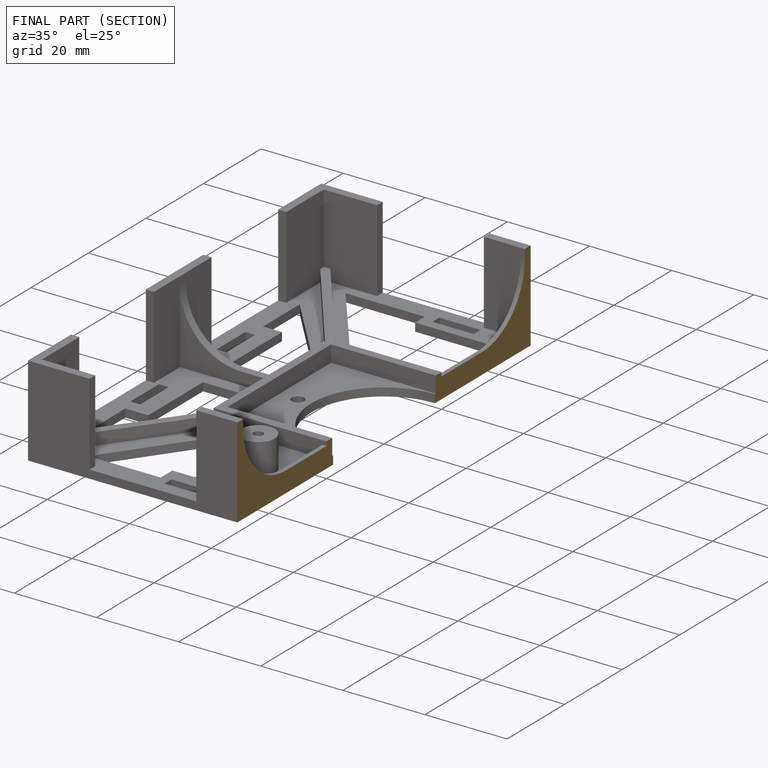
[diagram: finished part — half-section view (interior)]
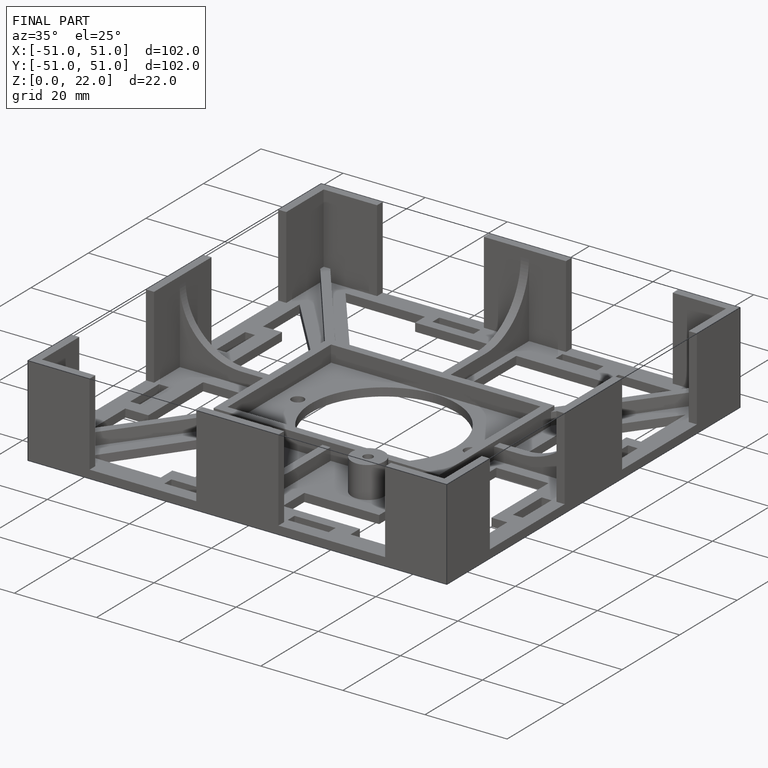
[diagram: finished part — iso view with bounding-box wireframe]
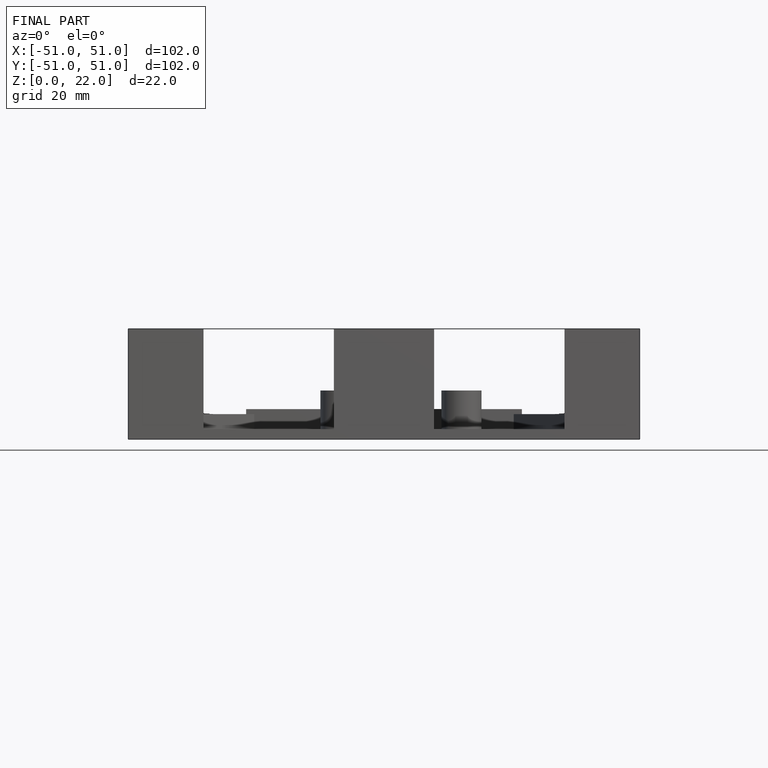
[diagram: finished part — front view with bounding-box wireframe]
